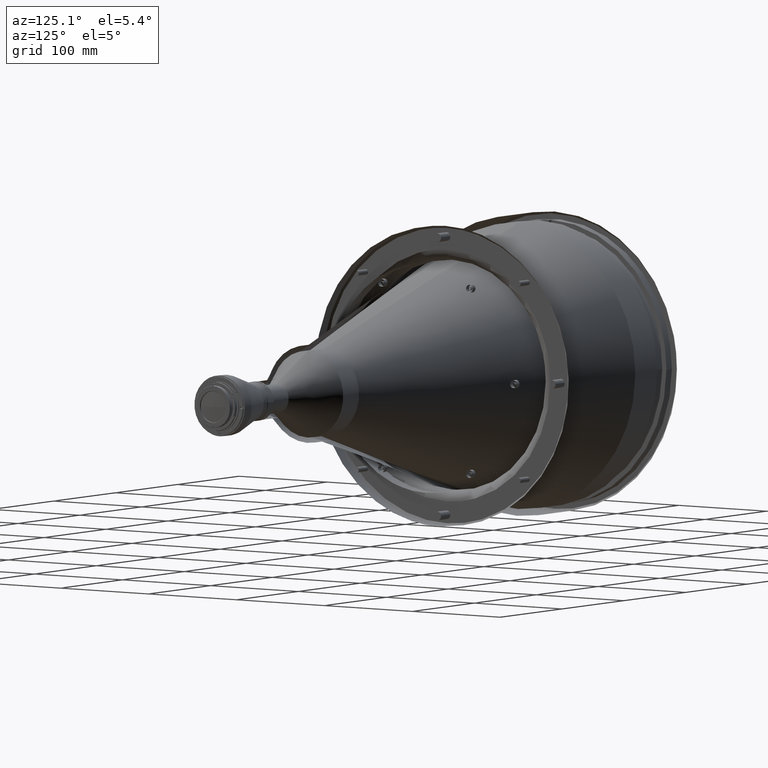
[diagram: clean part render]
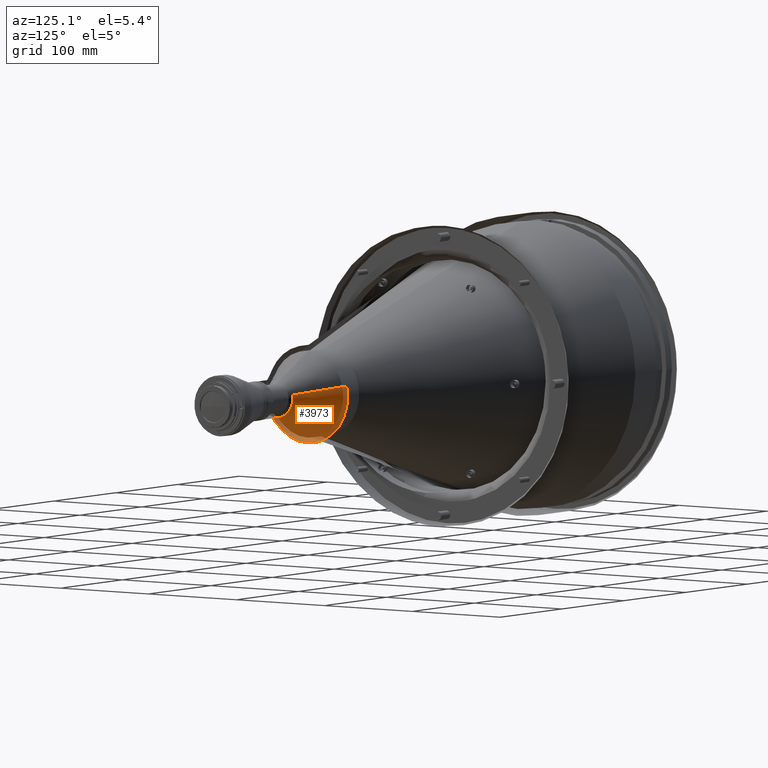
[diagram: same view with one face highlighted and labeled with its STEP entity id]
A machine part, auxiliary view. The second image highlights one B-rep face of the part: STEP entity #3973.
In plain terms, the highlighted conical surface has half-angle 28.811 deg.
Its self-contained STEP definition (entity closure, byte-faithful):
#1226 = AXIS2_PLACEMENT_3D ( 'NONE', #4665, #25548, #33330 ) ;
#1298 = CARTESIAN_POINT ( 'NONE',  ( 400.1999999892018423, 45.50000000593905014, -2.768180388100997646 ) ) ;
#1573 = CARTESIAN_POINT ( 'NONE',  ( 400.1999999891930884, 44.24179937631346604, -10.98071086715158629 ) ) ;
#1759 = CARTESIAN_POINT ( 'NONE',  ( 404.8000000000000114, -41.92195121951220216, -9.432439024390241400 ) ) ;
#1851 = VERTEX_POINT ( 'NONE', #22315 ) ;
#1917 = VERTEX_POINT ( 'NONE', #49265 ) ;
#1946 = LINE ( 'NONE', #22280, #11825 ) ;
#2860 = CARTESIAN_POINT ( 'NONE',  ( 400.1999999891730795, 35.74948373073275576, -28.28227777582696589 ) ) ;
#3026 = CARTESIAN_POINT ( 'NONE',  ( 450.2000000038601115, 6.296124067107622402, -17.00458278520990163 ) ) ;
#3122 = CARTESIAN_POINT ( 'NONE',  ( 400.1999999891245352, -6.027860504597353675, -45.18382145129517369 ) ) ;
#3304 = CARTESIAN_POINT ( 'NONE',  ( 450.2000000038600547, 10.19021007032045567, -14.99855435334379017 ) ) ;
#3853 = CARTESIAN_POINT ( 'NONE',  ( 450.2000000038599978, 17.59586883421841108, -4.379773274548547590 ) ) ;
#3973 = ADVANCED_FACE ( 'NONE', ( #25261 ), #54513, .F. ) ;
#4665 = CARTESIAN_POINT ( 'NONE',  ( 404.8000000000000114, -8.881784197001249168E-15, -4.884981308350689409E-14 ) ) ;
#5734 = CARTESIAN_POINT ( 'NONE',  ( 400.1999999891817765, 40.28907602627368334, -21.32377021428593267 ) ) ;
#5941 = VERTEX_POINT ( 'NONE', #45672 ) ;
#6180 = EDGE_CURVE ( 'NONE', #37209, #1917, #35206, .T. ) ;
#6318 = VECTOR ( 'NONE', #30724, 999.9999999999998863 ) ;
#7569 = CARTESIAN_POINT ( 'NONE',  ( 400.1999999891417019, 10.49910809997044048, -44.35855669777453869 ) ) ;
#8470 = LINE ( 'NONE', #1759, #6318 ) ;
#9995 = CARTESIAN_POINT ( 'NONE',  ( 400.1999999890144295, 45.12705906405366818, 6.713070853952771699 ) ) ;
#11766 = CARTESIAN_POINT ( 'NONE',  ( 400.1999999891071980, -21.76049389318050231, -40.05488395603114782 ) ) ;
#11825 = VECTOR ( 'NONE', #38954, 1000.000000000000000 ) ;
#13023 = EDGE_CURVE ( 'NONE', #5941, #1851, #15320, .T. ) ;
#13299 = EDGE_CURVE ( 'NONE', #51160, #37209, #17288, .T. ) ;
#14378 = CARTESIAN_POINT ( 'NONE',  ( 400.1999999890986146, -28.66924022555897267, -35.43991377099964524 ) ) ;
#15320 = B_SPLINE_CURVE_WITH_KNOTS ( 'NONE', 3,
 ( #48378, #9995, #26951, #39732 ),
 .UNSPECIFIED., .F., .F.,
 ( 4, 4 ),
 ( 0.000000000000000000, 1.000000000000000000 ),
 .UNSPECIFIED. ) ;
#15924 = CARTESIAN_POINT ( 'NONE',  ( 400.1999999891586981, 25.64253252763078095, -37.68784086111960363 ) ) ;
#16114 = CARTESIAN_POINT ( 'NONE',  ( 450.2000000038601115, 11.95160716056755312, -13.63657215897524821 ) ) ;
#16373 = CARTESIAN_POINT ( 'NONE',  ( 450.2000000038599978, 17.99999999929235273, -1.182509880995143991E-14 ) ) ;
#16587 = CARTESIAN_POINT ( 'NONE',  ( 450.2000000038599978, 17.56097560837535099, 3.951219511884405122 ) ) ;
#16656 = CARTESIAN_POINT ( 'NONE',  ( 450.2000000038599978, -16.20528765604387900, -8.135457329022168338 ) ) ;
#17288 = B_SPLINE_CURVE_WITH_KNOTS ( 'NONE', 3,
 ( #16587, #33562, #41903, #50001 ),
 .UNSPECIFIED., .F., .F.,
 ( 4, 4 ),
 ( 0.000000000000000000, 1.000000000000000000 ),
 .UNSPECIFIED. ) ;
#17305 = CARTESIAN_POINT ( 'NONE',  ( 400.1999999884171757, -44.39024390537220199, -9.987804878708738343 ) ) ;
#17474 = EDGE_LOOP ( 'NONE', ( #40372, #37676, #28015, #25833, #34221, #33690 ) ) ;
#18272 = CARTESIAN_POINT ( 'NONE',  ( 400.1999999891129960, -16.74416422818358186, -42.39747383401042669 ) ) ;
#18830 = CARTESIAN_POINT ( 'NONE',  ( 400.1999999890784920, -40.75233115245081450, -20.42450314814760048 ) ) ;
#19833 = CARTESIAN_POINT ( 'NONE',  ( 400.1999999891646098, 30.02228564221111284, -34.30124178540593505 ) ) ;
#20016 = CARTESIAN_POINT ( 'NONE',  ( 450.2000000038600547, -2.409846771156454182, -17.97191287835036277 ) ) ;
#20286 = CARTESIAN_POINT ( 'NONE',  ( 450.2000000038599410, -0.1890452918091476697, -18.13177530869807796 ) ) ;
#20830 = CARTESIAN_POINT ( 'NONE',  ( 450.2000000038601115, 4.164580230503647229, -17.64803913955221049 ) ) ;
#22280 = CARTESIAN_POINT ( 'NONE',  ( 404.8000000000000114, 41.92195121951218795, 9.432439024390149029 ) ) ;
#22315 = CARTESIAN_POINT ( 'NONE',  ( 400.1999999882374368, 45.50000000197839256, -3.264780185757434716E-14 ) ) ;
#22729 = CARTESIAN_POINT ( 'NONE',  ( 400.1999999891388597, 7.775883899443644331, -44.91601554887812142 ) ) ;
#22918 = CARTESIAN_POINT ( 'NONE',  ( 400.1999999884171757, -44.39024390537220199, -9.987804878708738343 ) ) ;
#23003 = CARTESIAN_POINT ( 'NONE',  ( 400.1999999890813910, -39.43166610127993010, -22.87042919765023896 ) ) ;
#23345 = EDGE_CURVE ( 'NONE', #51160, #5941, #1946, .T. ) ;
#24276 = CARTESIAN_POINT ( 'NONE',  ( 400.1999999891559128, 23.29774055377813724, -39.18071092122583110 ) ) ;
#25261 = FACE_OUTER_BOUND ( 'NONE', #17474, .T. ) ;
#25548 = DIRECTION ( 'NONE',  ( -1.000000000000000000, -1.962524856079189971E-17, -6.924887297870390797E-16 ) ) ;
#25833 = ORIENTED_EDGE ( 'NONE', *, *, #38877, .T. ) ;
#26951 = CARTESIAN_POINT ( 'NONE',  ( 400.1999999891095285, 45.50000000598972605, 3.356602376046171177 ) ) ;
#27175 = CARTESIAN_POINT ( 'NONE',  ( 400.1999999890900312, -34.62558802741317265, -29.64762177583543590 ) ) ;
#28015 = ORIENTED_EDGE ( 'NONE', *, *, #13023, .T. ) ;
#30724 = DIRECTION ( 'NONE',  ( -0.8762159086766470040, -0.4701646339240546646, -0.1057870426329123315 ) ) ;
#32163 = VERTEX_POINT ( 'NONE', #22918 ) ;
#32277 = CARTESIAN_POINT ( 'NONE',  ( 450.2000000038599978, 17.99999999929235273, -1.182509880995143991E-14 ) ) ;
#32613 = CARTESIAN_POINT ( 'NONE',  ( 400.1999999891330049, 2.273384974687151061, -45.52740431829868584 ) ) ;
#32895 = CARTESIAN_POINT ( 'NONE',  ( 400.1999999891158950, -14.12885911854548837, -43.33922199594877611 ) ) ;
#33084 = CARTESIAN_POINT ( 'NONE',  ( 450.2000000038601115, -13.78149876631784032, -11.78419728795510579 ) ) ;
#33330 = DIRECTION ( 'NONE',  ( 0.000000000000000000, -0.9756097560975612870, -0.2195121951219500822 ) ) ;
#33351 = CARTESIAN_POINT ( 'NONE',  ( 450.2000000038599410, 14.87300148329716620, -10.37260048615140740 ) ) ;
#33562 = CARTESIAN_POINT ( 'NONE',  ( 450.2000000038599410, 17.85246292406782231, 2.655720337476292769 ) ) ;
#33623 = CARTESIAN_POINT ( 'NONE',  ( 450.2000000038599978, -17.08019809936869038, -6.088008447250262911 ) ) ;
#33690 = ORIENTED_EDGE ( 'NONE', *, *, #6180, .F. ) ;
#34221 = ORIENTED_EDGE ( 'NONE', *, *, #36711, .F. ) ;
#35206 = B_SPLINE_CURVE_WITH_KNOTS ( 'NONE', 3,
 ( #16373, #41685, #3853, #41139, #33351, #16114, #3304, #3026, #20830, #20286, #20016, #54784, #37243, #54231, #33084, #16656, #33623, #42806 ),
 .UNSPECIFIED., .F., .F.,
 ( 4, 2, 2, 2, 2, 2, 2, 2, 4 ),
 ( 0.000000000000000000, 0.1161941781306805588, 0.2323883562613611453, 0.3485825343920417874, 0.4647767125227225127, 0.5809708906534031270, 0.6971650687840837968, 0.8133592469147644666, 0.9295534250454452474 ),
 .UNSPECIFIED. ) ;
#35523 = CARTESIAN_POINT ( 'NONE',  ( 400.1999999891044126, -24.16142581616297136, -38.65408549864383048 ) ) ;
#36528 = CARTESIAN_POINT ( 'NONE',  ( 400.1999999890729214, -42.92781546564674500, -15.33347587976620829 ) ) ;
#36711 = EDGE_CURVE ( 'NONE', #1917, #32163, #8470, .T. ) ;
#36792 = CARTESIAN_POINT ( 'NONE',  ( 400.1999999891845050, 41.51387634099064172, -18.82845969131093256 ) ) ;
#37209 = VERTEX_POINT ( 'NONE', #32277 ) ;
#37243 = CARTESIAN_POINT ( 'NONE',  ( 450.2000000038600547, -8.666710658339606965, -15.92749636107606470 ) ) ;
#37676 = ORIENTED_EDGE ( 'NONE', *, *, #23345, .T. ) ;
#38548 = B_SPLINE_CURVE_WITH_KNOTS ( 'NONE', 3,
 ( #39411, #1298, #52509, #1573, #45427, #36792, #5734, #45138, #2860, #54036, #19833, #15924, #24276, #41224, #53778, #7569, #22729, #32613, #52235, #3122, #39690, #32895, #18272, #11766, #35523, #14378, #48332, #27175, #44125, #23003, #18830, #36528, #53508, #17305 ),
 .UNSPECIFIED., .F., .F.,
 ( 4, 2, 2, 2, 2, 2, 2, 2, 2, 2, 2, 2, 2, 2, 2, 2, 4 ),
 ( 0.000000000000000000, 0.03010908550716707294, 0.06021817101433414587, 0.09032725652150119799, 0.1204363420286682640, 0.1505454275358353022, 0.1806545130430023682, 0.2107635985501694620, 0.2408726840573364725, 0.2709817695645035385, 0.3010908550716706045, 0.3311999405788376150, 0.3613090260860046254, 0.3914181115931716359, 0.4215271971003387019, 0.4516362826075056569, 0.4817453681146727229 ),
 .UNSPECIFIED. ) ;
#38877 = EDGE_CURVE ( 'NONE', #1851, #32163, #38548, .T. ) ;
#38954 = DIRECTION ( 'NONE',  ( -0.8762159086766471150, 0.4701646339240546091, 0.1057870426329111380 ) ) ;
#39411 = CARTESIAN_POINT ( 'NONE',  ( 400.1999999882374368, 45.50000000197839256, -3.264780185757434716E-14 ) ) ;
#39690 = CARTESIAN_POINT ( 'NONE',  ( 400.1999999891216930, -8.770657784034682436, -44.73240866799933713 ) ) ;
#39732 = CARTESIAN_POINT ( 'NONE',  ( 400.1999999882374368, 45.50000000197839256, -3.264780185757434716E-14 ) ) ;
#40372 = ORIENTED_EDGE ( 'NONE', *, *, #13299, .F. ) ;
#41139 = CARTESIAN_POINT ( 'NONE',  ( 450.2000000038597136, 16.03213966449535732, -8.471570795642493934 ) ) ;
#41224 = CARTESIAN_POINT ( 'NONE',  ( 400.1999999891501716, 18.37604852129581801, -41.71610796739182803 ) ) ;
#41685 = CARTESIAN_POINT ( 'NONE',  ( 450.2000000038600547, 18.00000000000000711, -2.190208658431477939 ) ) ;
#41903 = CARTESIAN_POINT ( 'NONE',  ( 450.2000000038599410, 17.99999999999999289, 1.327886654086734897 ) ) ;
#42806 = CARTESIAN_POINT ( 'NONE',  ( 450.2000000038600547, -17.56097560872049002, -3.951219511962124287 ) ) ;
#44125 = CARTESIAN_POINT ( 'NONE',  ( 400.1999999890873028, -36.36826625413603153, -27.48203109079722495 ) ) ;
#45138 = CARTESIAN_POINT ( 'NONE',  ( 400.1999999891759785, 37.40685310934129149, -26.05072290089047726 ) ) ;
#45427 = CARTESIAN_POINT ( 'NONE',  ( 400.1999999891901894, 43.49025626409041934, -13.65688226814013184 ) ) ;
#45531 = CARTESIAN_POINT ( 'NONE',  ( 450.2000000038599978, 17.56097560837535099, 3.951219511884405122 ) ) ;
#45672 = CARTESIAN_POINT ( 'NONE',  ( 400.1999999882019665, 44.39024390658385499, 9.987804878981270562 ) ) ;
#48332 = CARTESIAN_POINT ( 'NONE',  ( 400.1999999890957156, -30.77603946992327977, -33.62659985417152342 ) ) ;
#48378 = CARTESIAN_POINT ( 'NONE',  ( 400.1999999882019665, 44.39024390658385499, 9.987804878981270562 ) ) ;
#49265 = CARTESIAN_POINT ( 'NONE',  ( 450.2000000038600547, -17.56097560872049002, -3.951219511962124287 ) ) ;
#50001 = CARTESIAN_POINT ( 'NONE',  ( 450.2000000038599978, 17.99999999929235273, -1.182509880995143991E-14 ) ) ;
#51160 = VERTEX_POINT ( 'NONE', #45531 ) ;
#52235 = CARTESIAN_POINT ( 'NONE',  ( 400.1999999891303332, -0.5057881394839143230, -45.58132294660914141 ) ) ;
#52509 = CARTESIAN_POINT ( 'NONE',  ( 400.1999999891989432, 45.24668052538881824, -5.536309658523734356 ) ) ;
#53508 = CARTESIAN_POINT ( 'NONE',  ( 400.1999999890701361, -43.78259455481727258, -12.68846867264216449 ) ) ;
#53778 = CARTESIAN_POINT ( 'NONE',  ( 400.1999999891472726, 15.79923934744828529, -42.75858813438883743 ) ) ;
#54036 = CARTESIAN_POINT ( 'NONE',  ( 400.1999999891673951, 32.05716590569069524, -32.40757530729921143 ) ) ;
#54231 = CARTESIAN_POINT ( 'NONE',  ( 450.2000000038601115, -12.23333304772008034, -13.38441543404224632 ) ) ;
#54513 = CONICAL_SURFACE ( 'NONE', #1226, 42.96999999999998465, 0.5028432109278609952 ) ;
#54784 = CARTESIAN_POINT ( 'NONE',  ( 450.2000000038599978, -6.649302771529831624, -16.86961133577161576 ) ) ;